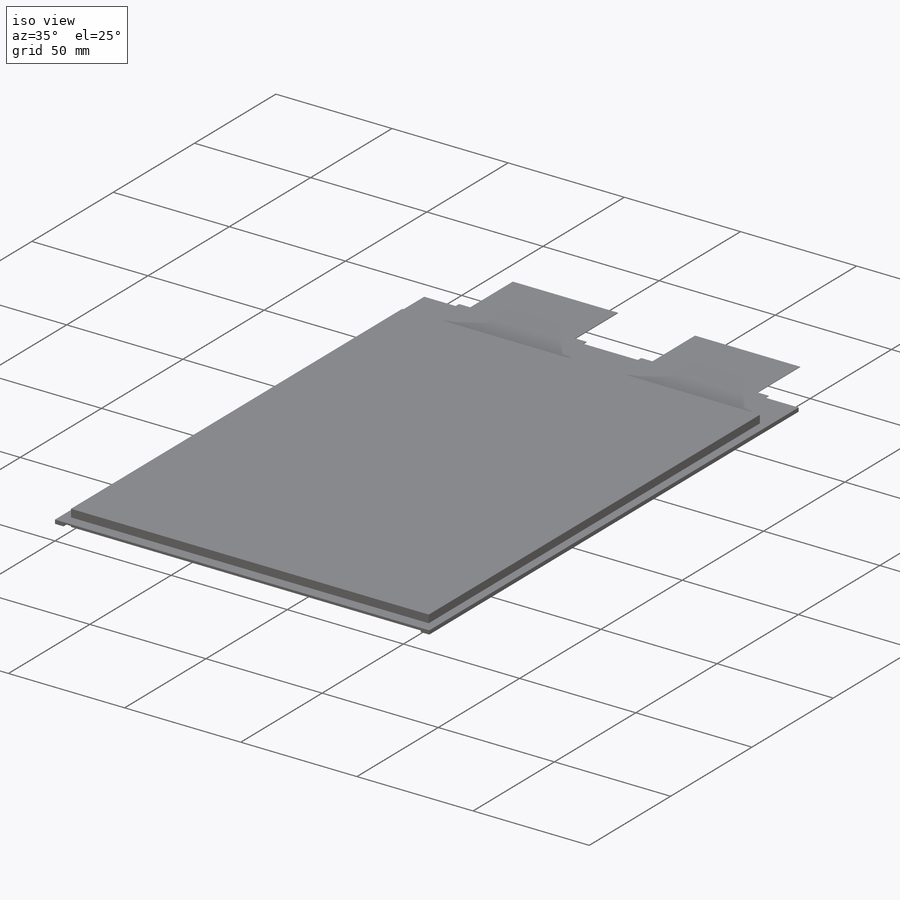
[diagram: iso view]
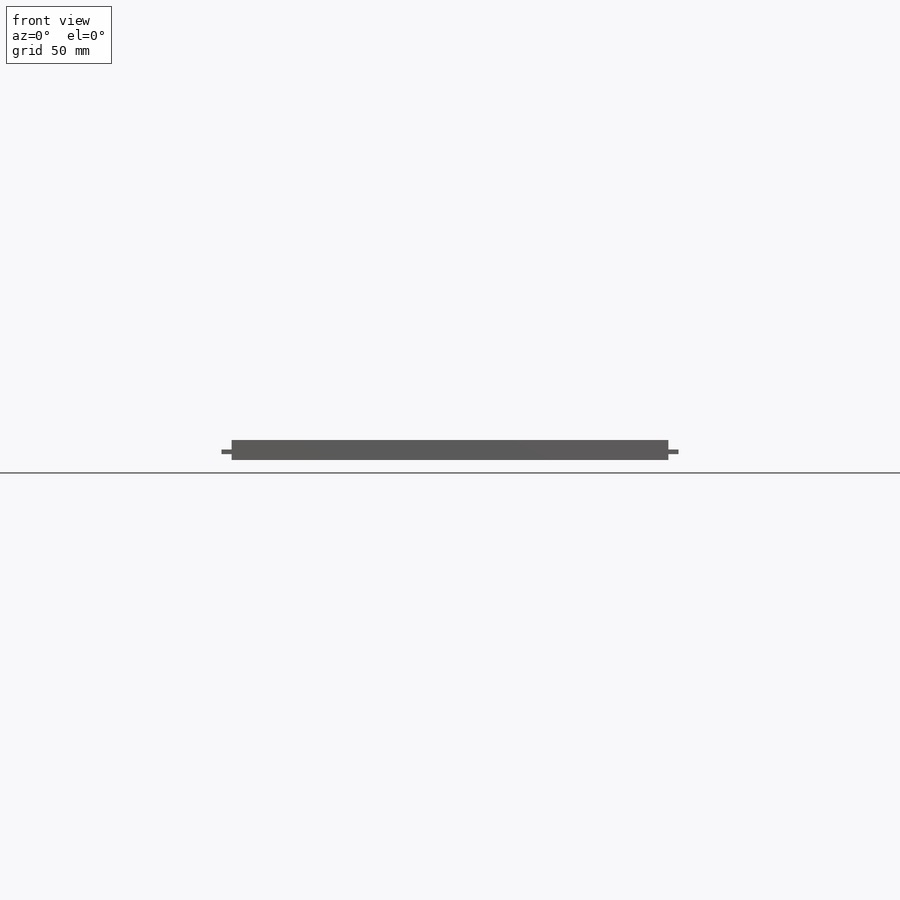
[diagram: front view]
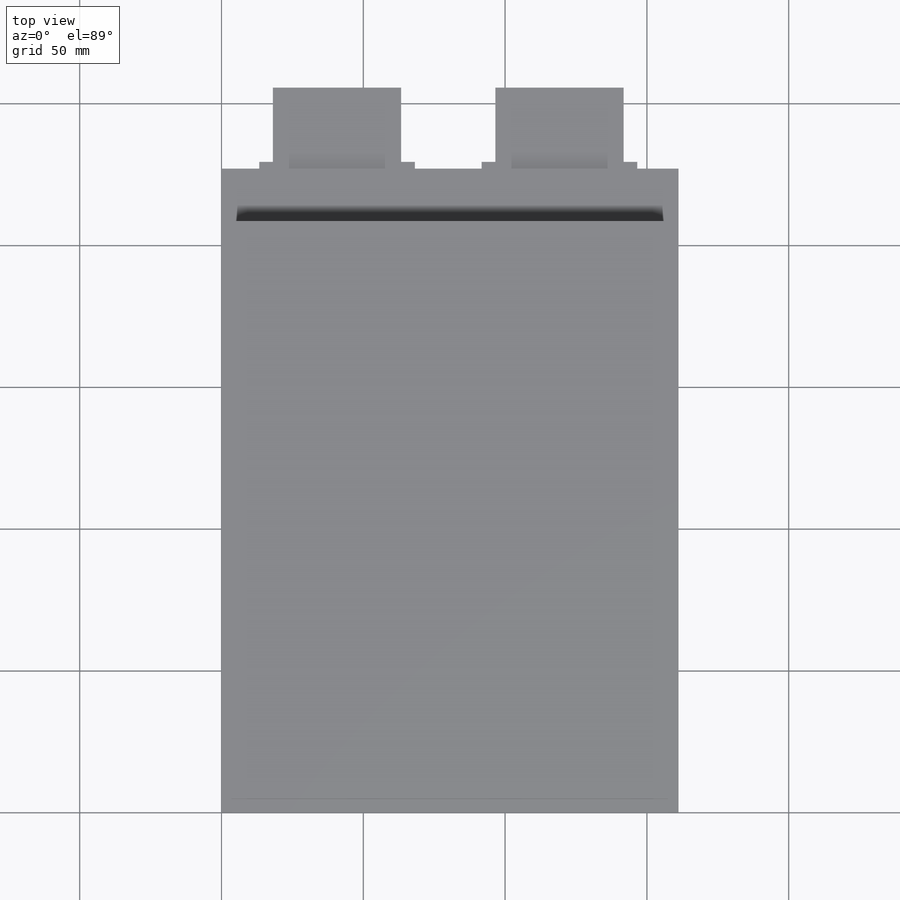
[diagram: top view]
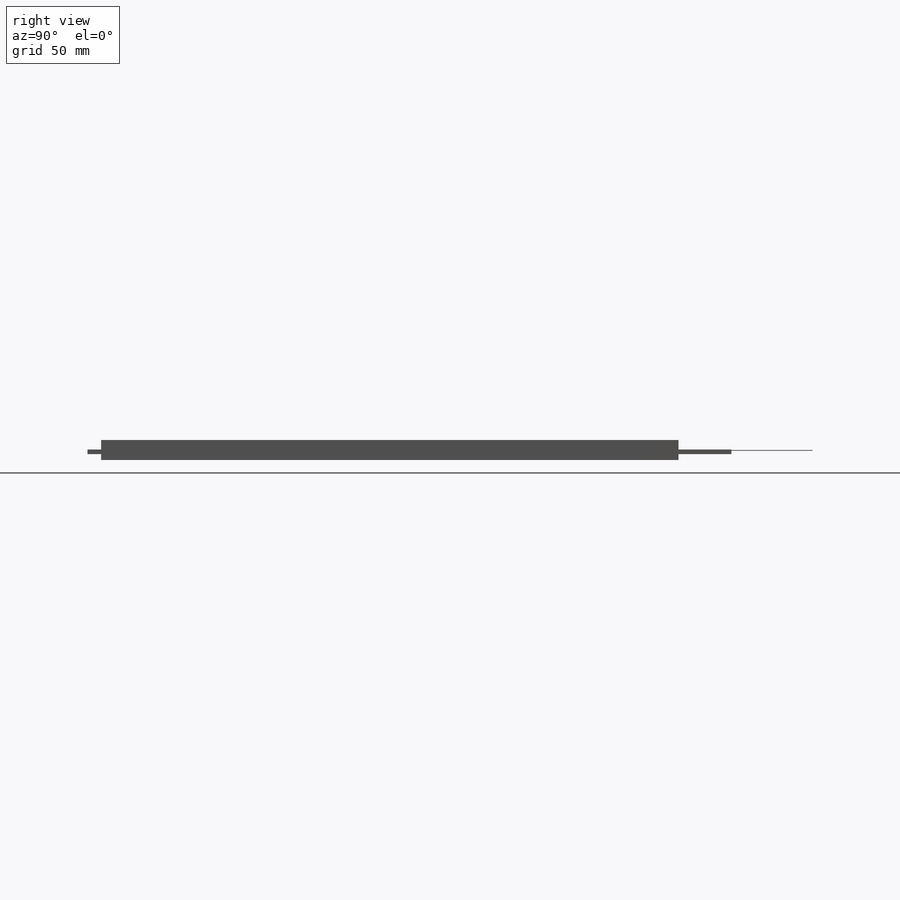
[diagram: right view]
SOLIDWORKS PART (.sldprt)
format: sldprt  version: not decoded by parser v0  size: 246,784 bytes
history: native  units: mm
features: sketch x6, extrude x5, material x1, plane x1, mirror x1 (+13 scaffold rows collapsed)
feature tree (27):
  scaffold x13  (default folders/planes/origin — collapsed)
  material  "PE High Density"
  sketch  "Sketch1"  dims[c1.D1=~161.13125mm c1.D2=227.0125mm c1.D3=153.9875mm c1.D4=~203.596875mm c1.D5=~5.55625mm c1.D6=19.3675mm c1.D7=45.212mm c1.D8=97.79mm c1.D9=45.212mm c1.D10=28.575mm c2.D5=~208.359375mm c2.D11=54.864mm c2.D12=~2.38125mm c2.D13=~2.38125mm c2.D14=54.864mm]
  extrude  "Cell Insulation"  Depth=0.635mm
  extrude  "Cell Body"  [1 undecoded]
  sketch  "Sketch1<3>"  dims[D1=3.6703mm D2=3.4163mm]
  extrude  "Anode Tab"  [1 undecoded]
  sketch  "Sketch1<4>"  dims[D1=0.2032mm]
  extrude  "Cathode Tab"  [1 undecoded]
  sketch  "Sketch1<5>"  dims[D1=0.2794mm]
  sketch  "Sketch2"  dims[D1=3.683mm]
  extrude  "Edge Fold"  Depth=1.016mm
  plane  "Mirror Plane"
  mirror  "Edge Folds Mirror"
  sketch  "Sketch4"
decode coverage: 7 of 12 modeling features carry decoded parameters
note: ~ marks probable driven/reference dimensions
note: 3 parameter values undecoded
summary: no parameter record found for 3 features
note: suppression state not decoded; provenance and decode notes live in map.json
